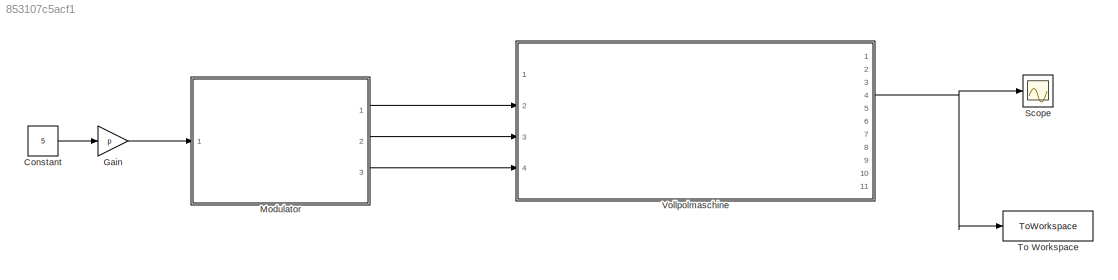
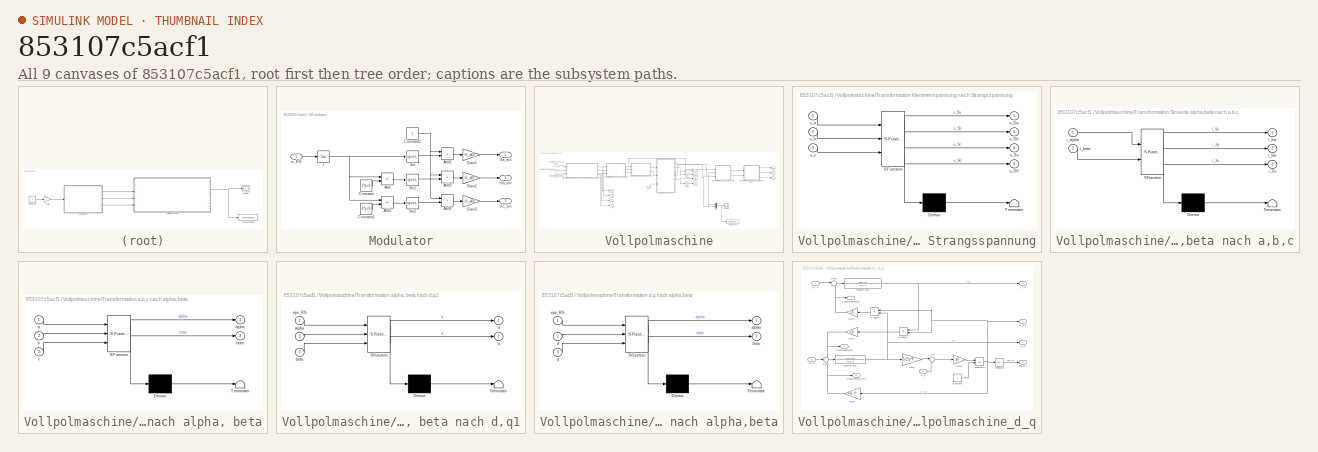
[diagram: thumbnail index - all 9 canvases of the model, root first then tree order]
MODEL slx_853107c5acf1
KIND model
CONFIG AbsTol = auto
CONFIG EnableMultiTasking = on
CONFIG FixedStep = 1e-8
CONFIG MaxStep = 1e-4
CONFIG MinStep = 1e-9
CONFIG RelTol = 1e-9
CONFIG SampleTimeConstraint = Unconstrained
CONFIG SolverName = VariableStepAuto
CONFIG StartTime = 0.0
CONFIG StopTime = 5
BLOCK [Constant] Constant
  Value = 5
BLOCK [Gain] Gain
  Gain = p
BLOCK [SubSystem] Modulator
  Ports = [1, 3]
  RequestExecContextInheritance = off
BLOCK [Sum] Modulator/Add
  IconShape = rectangular
  Inputs = +-
  Ports = [2, 1]
BLOCK [Sum] Modulator/Add1
  IconShape = rectangular
  Inputs = +-
  Ports = [2, 1]
BLOCK [Sum] Modulator/Add2
  IconShape = rectangular
  Ports = [2, 1]
BLOCK [Sum] Modulator/Add3
  IconShape = rectangular
  Ports = [2, 1]
BLOCK [Sum] Modulator/Add4
  IconShape = rectangular
  Ports = [2, 1]
BLOCK [Constant] Modulator/Constant
  Value = 2*pi/3
BLOCK [Constant] Modulator/Constant1
  Value = 4*pi/3
BLOCK [Constant] Modulator/Constant2
BLOCK [Gain] Modulator/Gain1
  Gain = U_d/2
BLOCK [Gain] Modulator/Gain2
  Gain = U_d/2
BLOCK [Gain] Modulator/Gain3
  Gain = U_d/2
BLOCK [Trigonometry] Modulator/Sin
  Ports = [1, 1]
BLOCK [Trigonometry] Modulator/Sin1
  Ports = [1, 1]
BLOCK [Trigonometry] Modulator/Sin2
  Ports = [1, 1]
BLOCK [Outport] Modulator/Ua_sin
BLOCK [Outport] Modulator/Ub_sin
  Port = 2
BLOCK [Outport] Modulator/Uc_sin
  Port = 3
BLOCK [Integrator] Modulator/t
  Ports = [1, 1]
BLOCK [Inport] Modulator/w_RS
BLOCK [Scope] Scope
  Floating = off
  NumInputPorts = 1
  Ports = [1]
  ScopeSpecificationString = Simulink.scopes.TimeScopeBlockCfg('CurrentConfiguration', extmgr.ConfigurationSet(extmgr.Configuration('Core','General UI',true),extmgr.Configuration('Core','Source UI',true),extmgr.Configuration('Sources','WiredSimulink',true),extmgr.Configuration('Visuals','Time Domain',true,'SerializedDisplays',{struct('MinYLimReal','-22.03806','MaxYLimReal','30.10528','YLabelReal','','MinYLimMag','0.00000','Ma...<+1422ch>
BLOCK [ToWorkspace] To Workspace
  FixptAsFi = on
  MaxDataPoints = inf
  Ports = [1]
  SampleTime = -1
  SaveFormat = Timeseries
  VariableName = mech_winkelg
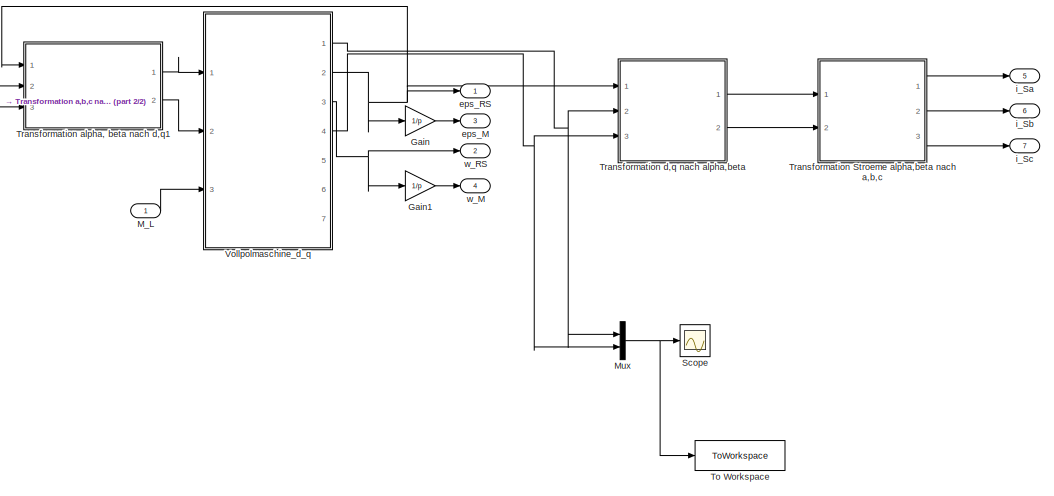
[diagram: Vollpolmaschine - part 1/2, right side, full height]
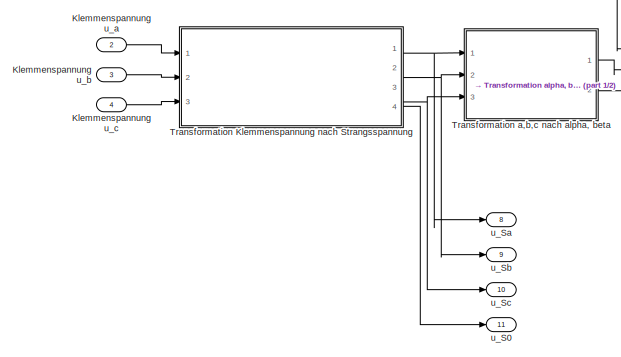
[diagram: Vollpolmaschine - part 2/2, middle left region]
BLOCK [SubSystem] Vollpolmaschine
  Ports = [4, 11]
  RequestExecContextInheritance = off
BLOCK [Gain] Vollpolmaschine/Gain
  Gain = 1/p
BLOCK [Gain] Vollpolmaschine/Gain1
  Gain = 1/p
BLOCK [Inport] Vollpolmaschine/Klemmenspannung u_a
  Port = 2
BLOCK [Inport] Vollpolmaschine/Klemmenspannung u_b
  Port = 3
BLOCK [Inport] Vollpolmaschine/Klemmenspannung u_c
  Port = 4
BLOCK [Inport] Vollpolmaschine/M_L
BLOCK [Mux] Vollpolmaschine/Mux
  DisplayOption = bar
  Inputs = 2
  Ports = [2, 1]
BLOCK [Scope] Vollpolmaschine/Scope
  Floating = off
  NumInputPorts = 1
  Ports = [1]
  ScopeSpecificationString = Simulink.scopes.TimeScopeBlockCfg('CurrentConfiguration', extmgr.ConfigurationSet(extmgr.Configuration('Core','General UI',true),extmgr.Configuration('Core','Source UI',true),extmgr.Configuration('Sources','WiredSimulink',true,'DataLoggingVariableName','ScopeData1'),extmgr.Configuration('Visuals','Time Domain',true,'SerializedDisplays',{struct('MinYLimReal','-28.21785','MaxYLimReal','31.65985','YL...<+1497ch>
BLOCK [ToWorkspace] Vollpolmaschine/To Workspace
  FixptAsFi = on
  MaxDataPoints = inf
  Ports = [1]
  SampleTime = -1
  SaveFormat = Timeseries
  VariableName = dq_strome
BLOCK [SubSystem] Vollpolmaschine/Transformation Klemmenspannung nach Strangsspannung
  ErrorFcn = Stateflow.Translate.translate
  PermitHierarchicalResolution = ExplicitOnly
  Ports = [3, 4]
  RequestExecContextInheritance = off
  SFBlockType = MATLAB Function
  TreatAsAtomicUnit = on
BLOCK [Demux] Vollpolmaschine/Transformation Klemmenspannung nach Strangsspannung/ Demux 
  Outputs = 1
  Ports = [1, 1]
BLOCK [S-Function] Vollpolmaschine/Transformation Klemmenspannung nach Strangsspannung/ SFunction 
  EnableBusSupport = on
  FunctionName = sf_sfun
  PortCounts = [3 5]
  Ports = [3, 5]
  SFcnIsStateOwnerBlock = off
  SFunctionDeploymentMode = off
  Tag = Stateflow S-Function 9
BLOCK [Terminator] Vollpolmaschine/Transformation Klemmenspannung nach Strangsspannung/ Terminator 
BLOCK [Outport] Vollpolmaschine/Transformation Klemmenspannung nach Strangsspannung/u_S0
  Port = 4
  VectorParamsAs1DForOutWhenUnconnected = off
BLOCK [Outport] Vollpolmaschine/Transformation Klemmenspannung nach Strangsspannung/u_Sa
  VectorParamsAs1DForOutWhenUnconnected = off
BLOCK [Outport] Vollpolmaschine/Transformation Klemmenspannung nach Strangsspannung/u_Sb
  Port = 2
  VectorParamsAs1DForOutWhenUnconnected = off
BLOCK [Outport] Vollpolmaschine/Transformation Klemmenspannung nach Strangsspannung/u_Sc
  Port = 3
  VectorParamsAs1DForOutWhenUnconnected = off
BLOCK [Inport] Vollpolmaschine/Transformation Klemmenspannung nach Strangsspannung/u_a
BLOCK [Inport] Vollpolmaschine/Transformation Klemmenspannung nach Strangsspannung/u_b
  Port = 2
BLOCK [Inport] Vollpolmaschine/Transformation Klemmenspannung nach Strangsspannung/u_c
  Port = 3
BLOCK [SubSystem] Vollpolmaschine/Transformation Stroeme alpha,beta nach a,b,c
  ErrorFcn = Stateflow.Translate.translate
  PermitHierarchicalResolution = ExplicitOnly
  Ports = [2, 3]
  RequestExecContextInheritance = off
  SFBlockType = MATLAB Function
  TreatAsAtomicUnit = on
BLOCK [Demux] Vollpolmaschine/Transformation Stroeme alpha,beta nach a,b,c/ Demux 
  Outputs = 1
  Ports = [1, 1]
BLOCK [S-Function] Vollpolmaschine/Transformation Stroeme alpha,beta nach a,b,c/ SFunction 
  EnableBusSupport = on
  FunctionName = sf_sfun
  PortCounts = [2 4]
  Ports = [2, 4]
  SFcnIsStateOwnerBlock = off
  SFunctionDeploymentMode = off
  Tag = Stateflow S-Function 10
BLOCK [Terminator] Vollpolmaschine/Transformation Stroeme alpha,beta nach a,b,c/ Terminator 
BLOCK [Outport] Vollpolmaschine/Transformation Stroeme alpha,beta nach a,b,c/i_Sa
  VectorParamsAs1DForOutWhenUnconnected = off
BLOCK [Outport] Vollpolmaschine/Transformation Stroeme alpha,beta nach a,b,c/i_Sb
  Port = 2
  VectorParamsAs1DForOutWhenUnconnected = off
BLOCK [Outport] Vollpolmaschine/Transformation Stroeme alpha,beta nach a,b,c/i_Sc
  Port = 3
  VectorParamsAs1DForOutWhenUnconnected = off
BLOCK [Inport] Vollpolmaschine/Transformation Stroeme alpha,beta nach a,b,c/i_alpha
BLOCK [Inport] Vollpolmaschine/Transformation Stroeme alpha,beta nach a,b,c/i_beta
  Port = 2
BLOCK [SubSystem] Vollpolmaschine/Transformation a,b,c nach alpha, beta
  ErrorFcn = Stateflow.Translate.translate
  PermitHierarchicalResolution = ExplicitOnly
  Ports = [3, 2]
  RequestExecContextInheritance = off
  SFBlockType = MATLAB Function
  TreatAsAtomicUnit = on
BLOCK [Demux] Vollpolmaschine/Transformation a,b,c nach alpha, beta/ Demux 
  Outputs = 1
  Ports = [1, 1]
BLOCK [S-Function] Vollpolmaschine/Transformation a,b,c nach alpha, beta/ SFunction 
  EnableBusSupport = on
  FunctionName = sf_sfun
  PortCounts = [3 3]
  Ports = [3, 3]
  SFcnIsStateOwnerBlock = off
  SFunctionDeploymentMode = off
  Tag = Stateflow S-Function 11
BLOCK [Terminator] Vollpolmaschine/Transformation a,b,c nach alpha, beta/ Terminator 
BLOCK [Inport] Vollpolmaschine/Transformation a,b,c nach alpha, beta/a
BLOCK [Outport] Vollpolmaschine/Transformation a,b,c nach alpha, beta/alpha
  VectorParamsAs1DForOutWhenUnconnected = off
BLOCK [Inport] Vollpolmaschine/Transformation a,b,c nach alpha, beta/b
  Port = 2
BLOCK [Outport] Vollpolmaschine/Transformation a,b,c nach alpha, beta/beta
  Port = 2
  VectorParamsAs1DForOutWhenUnconnected = off
BLOCK [Inport] Vollpolmaschine/Transformation a,b,c nach alpha, beta/c
  Port = 3
BLOCK [SubSystem] Vollpolmaschine/Transformation alpha, beta nach d,q1
  ErrorFcn = Stateflow.Translate.translate
  PermitHierarchicalResolution = ExplicitOnly
  Ports = [3, 2]
  RequestExecContextInheritance = off
  SFBlockType = MATLAB Function
  TreatAsAtomicUnit = on
BLOCK [Demux] Vollpolmaschine/Transformation alpha, beta nach d,q1/ Demux 
  Outputs = 1
  Ports = [1, 1]
BLOCK [S-Function] Vollpolmaschine/Transformation alpha, beta nach d,q1/ SFunction 
  EnableBusSupport = on
  FunctionName = sf_sfun
  PortCounts = [3 3]
  Ports = [3, 3]
  SFcnIsStateOwnerBlock = off
  SFunctionDeploymentMode = off
  Tag = Stateflow S-Function 12
BLOCK [Terminator] Vollpolmaschine/Transformation alpha, beta nach d,q1/ Terminator 
BLOCK [Inport] Vollpolmaschine/Transformation alpha, beta nach d,q1/alpha
  Port = 2
BLOCK [Inport] Vollpolmaschine/Transformation alpha, beta nach d,q1/beta
  Port = 3
BLOCK [Outport] Vollpolmaschine/Transformation alpha, beta nach d,q1/d
  VectorParamsAs1DForOutWhenUnconnected = off
BLOCK [Inport] Vollpolmaschine/Transformation alpha, beta nach d,q1/eps_RS
BLOCK [Outport] Vollpolmaschine/Transformation alpha, beta nach d,q1/q
  Port = 2
  VectorParamsAs1DForOutWhenUnconnected = off
BLOCK [SubSystem] Vollpolmaschine/Transformation d,q nach alpha,beta
  ErrorFcn = Stateflow.Translate.translate
  PermitHierarchicalResolution = ExplicitOnly
  Ports = [3, 2]
  RequestExecContextInheritance = off
  SFBlockType = MATLAB Function
  TreatAsAtomicUnit = on
BLOCK [Demux] Vollpolmaschine/Transformation d,q nach alpha,beta/ Demux 
  Outputs = 1
  Ports = [1, 1]
BLOCK [S-Function] Vollpolmaschine/Transformation d,q nach alpha,beta/ SFunction 
  EnableBusSupport = on
  FunctionName = sf_sfun
  PortCounts = [3 3]
  Ports = [3, 3]
  SFcnIsStateOwnerBlock = off
  SFunctionDeploymentMode = off
  Tag = Stateflow S-Function 13
BLOCK [Terminator] Vollpolmaschine/Transformation d,q nach alpha,beta/ Terminator 
BLOCK [Outport] Vollpolmaschine/Transformation d,q nach alpha,beta/alpha
  VectorParamsAs1DForOutWhenUnconnected = off
BLOCK [Outport] Vollpolmaschine/Transformation d,q nach alpha,beta/beta
  Port = 2
  VectorParamsAs1DForOutWhenUnconnected = off
BLOCK [Inport] Vollpolmaschine/Transformation d,q nach alpha,beta/d
  Port = 2
BLOCK [Inport] Vollpolmaschine/Transformation d,q nach alpha,beta/eps_RS
BLOCK [Inport] Vollpolmaschine/Transformation d,q nach alpha,beta/q
  Port = 3
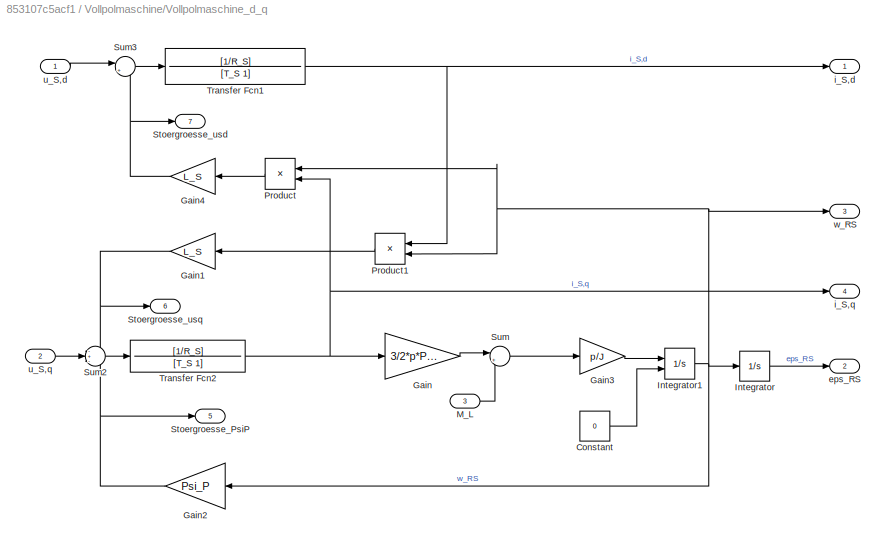
BLOCK [SubSystem] Vollpolmaschine/Vollpolmaschine_d_q
  Ports = [3, 7]
  RequestExecContextInheritance = off
BLOCK [Constant] Vollpolmaschine/Vollpolmaschine_d_q/Constant
  Value = 0
BLOCK [Gain] Vollpolmaschine/Vollpolmaschine_d_q/Gain
  Gain = 3/2*p*Psi_P
BLOCK [Gain] Vollpolmaschine/Vollpolmaschine_d_q/Gain1
  Gain = L_S
BLOCK [Gain] Vollpolmaschine/Vollpolmaschine_d_q/Gain2
  Gain = Psi_P
BLOCK [Gain] Vollpolmaschine/Vollpolmaschine_d_q/Gain3
  Gain = p/J
BLOCK [Gain] Vollpolmaschine/Vollpolmaschine_d_q/Gain4
  Gain = L_S
BLOCK [Integrator] Vollpolmaschine/Vollpolmaschine_d_q/Integrator
  Ports = [1, 1]
BLOCK [Integrator] Vollpolmaschine/Vollpolmaschine_d_q/Integrator1
  InitialConditionSource = external
  Ports = [2, 1]
BLOCK [Inport] Vollpolmaschine/Vollpolmaschine_d_q/M_L
  Port = 3
BLOCK [Product] Vollpolmaschine/Vollpolmaschine_d_q/Product
  Ports = [2, 1]
BLOCK [Product] Vollpolmaschine/Vollpolmaschine_d_q/Product1
  Ports = [2, 1]
BLOCK [Outport] Vollpolmaschine/Vollpolmaschine_d_q/Stoergroesse_PsiP
  Port = 5
  VectorParamsAs1DForOutWhenUnconnected = off
BLOCK [Outport] Vollpolmaschine/Vollpolmaschine_d_q/Stoergroesse_usd
  Port = 7
  VectorParamsAs1DForOutWhenUnconnected = off
BLOCK [Outport] Vollpolmaschine/Vollpolmaschine_d_q/Stoergroesse_usq
  Port = 6
  VectorParamsAs1DForOutWhenUnconnected = off
BLOCK [Sum] Vollpolmaschine/Vollpolmaschine_d_q/Sum
  Inputs = |+-
  Ports = [2, 1]
BLOCK [Sum] Vollpolmaschine/Vollpolmaschine_d_q/Sum2
  Inputs = -+-
  Ports = [3, 1]
BLOCK [Sum] Vollpolmaschine/Vollpolmaschine_d_q/Sum3
  Inputs = |++
  Ports = [2, 1]
BLOCK [TransferFcn] Vollpolmaschine/Vollpolmaschine_d_q/Transfer Fcn1
  Denominator = [T_S 1]
  Numerator = [1/R_S]
BLOCK [TransferFcn] Vollpolmaschine/Vollpolmaschine_d_q/Transfer Fcn2
  Denominator = [T_S 1]
  Numerator = [1/R_S]
BLOCK [Outport] Vollpolmaschine/Vollpolmaschine_d_q/eps_RS
  Port = 2
  VectorParamsAs1DForOutWhenUnconnected = off
BLOCK [Outport] Vollpolmaschine/Vollpolmaschine_d_q/i_S,d
  VectorParamsAs1DForOutWhenUnconnected = off
BLOCK [Outport] Vollpolmaschine/Vollpolmaschine_d_q/i_S,q
  Port = 4
  VectorParamsAs1DForOutWhenUnconnected = off
BLOCK [Inport] Vollpolmaschine/Vollpolmaschine_d_q/u_S,d
BLOCK [Inport] Vollpolmaschine/Vollpolmaschine_d_q/u_S,q
  Port = 2
BLOCK [Outport] Vollpolmaschine/Vollpolmaschine_d_q/w_RS
  Port = 3
  VectorParamsAs1DForOutWhenUnconnected = off
BLOCK [Outport] Vollpolmaschine/eps_M
  Port = 3
  VectorParamsAs1DForOutWhenUnconnected = off
BLOCK [Outport] Vollpolmaschine/eps_RS
  VectorParamsAs1DForOutWhenUnconnected = off
BLOCK [Outport] Vollpolmaschine/i_Sa
  Port = 5
  VectorParamsAs1DForOutWhenUnconnected = off
BLOCK [Outport] Vollpolmaschine/i_Sb
  Port = 6
  VectorParamsAs1DForOutWhenUnconnected = off
BLOCK [Outport] Vollpolmaschine/i_Sc
  Port = 7
  VectorParamsAs1DForOutWhenUnconnected = off
BLOCK [Outport] Vollpolmaschine/u_S0
  Port = 11
  VectorParamsAs1DForOutWhenUnconnected = off
BLOCK [Outport] Vollpolmaschine/u_Sa
  Port = 8
  VectorParamsAs1DForOutWhenUnconnected = off
BLOCK [Outport] Vollpolmaschine/u_Sb
  Port = 9
  VectorParamsAs1DForOutWhenUnconnected = off
BLOCK [Outport] Vollpolmaschine/u_Sc
  Port = 10
  VectorParamsAs1DForOutWhenUnconnected = off
BLOCK [Outport] Vollpolmaschine/w_M
  Port = 4
  VectorParamsAs1DForOutWhenUnconnected = off
BLOCK [Outport] Vollpolmaschine/w_RS
  Port = 2
  VectorParamsAs1DForOutWhenUnconnected = off
LINE Constant:1 -> Gain:1
LINE Gain:1 -> Modulator:1
LINE Modulator/Add1:1 -> Modulator/Sin2:1
LINE Modulator/Add2:1 -> Modulator/Gain1:1
LINE Modulator/Add3:1 -> Modulator/Gain2:1
LINE Modulator/Add4:1 -> Modulator/Gain3:1
LINE Modulator/Add:1 -> Modulator/Sin1:1
LINE Modulator/Constant1:1 -> Modulator/Add1:2
NET Modulator/Constant2:1 -> Modulator/Add2:1, Modulator/Add3:1, Modulator/Add4:1
LINE Modulator/Constant:1 -> Modulator/Add:2
LINE Modulator/Gain1:1 -> Modulator/Ua_sin:1
LINE Modulator/Gain2:1 -> Modulator/Ub_sin:1
LINE Modulator/Gain3:1 -> Modulator/Uc_sin:1
LINE Modulator/Sin1:1 -> Modulator/Add3:2
LINE Modulator/Sin2:1 -> Modulator/Add4:2
LINE Modulator/Sin:1 -> Modulator/Add2:2
NET Modulator/t:1 -> Modulator/Add1:1, Modulator/Add:1, Modulator/Sin:1
LINE Modulator/w_RS:1 -> Modulator/t:1
LINE Modulator:1 -> Vollpolmaschine:2
LINE Modulator:2 -> Vollpolmaschine:3
LINE Modulator:3 -> Vollpolmaschine:4
LINE Vollpolmaschine/Gain1:1 -> Vollpolmaschine/w_M:1
LINE Vollpolmaschine/Gain:1 -> Vollpolmaschine/eps_M:1
LINE Vollpolmaschine/Klemmenspannung u_a:1 -> Vollpolmaschine/Transformation Klemmenspannung nach Strangsspannung:1
LINE Vollpolmaschine/Klemmenspannung u_b:1 -> Vollpolmaschine/Transformation Klemmenspannung nach Strangsspannung:2
LINE Vollpolmaschine/Klemmenspannung u_c:1 -> Vollpolmaschine/Transformation Klemmenspannung nach Strangsspannung:3
LINE Vollpolmaschine/M_L:1 -> Vollpolmaschine/Vollpolmaschine_d_q:3
NET Vollpolmaschine/Mux:1 -> Vollpolmaschine/Scope:1, Vollpolmaschine/To Workspace:1
NET Vollpolmaschine/Transformation Klemmenspannung nach Strangsspannung:1 -> Vollpolmaschine/Transformation a,b,c nach alpha, beta:1, Vollpolmaschine/u_Sa:1
NET Vollpolmaschine/Transformation Klemmenspannung nach Strangsspannung:2 -> Vollpolmaschine/Transformation a,b,c nach alpha, beta:2, Vollpolmaschine/u_Sb:1
NET Vollpolmaschine/Transformation Klemmenspannung nach Strangsspannung:3 -> Vollpolmaschine/Transformation a,b,c nach alpha, beta:3, Vollpolmaschine/u_Sc:1
LINE Vollpolmaschine/Transformation Klemmenspannung nach Strangsspannung:4 -> Vollpolmaschine/u_S0:1
LINE Vollpolmaschine/Transformation Stroeme alpha,beta nach a,b,c:1 -> Vollpolmaschine/i_Sa:1
LINE Vollpolmaschine/Transformation Stroeme alpha,beta nach a,b,c:2 -> Vollpolmaschine/i_Sb:1
LINE Vollpolmaschine/Transformation Stroeme alpha,beta nach a,b,c:3 -> Vollpolmaschine/i_Sc:1
LINE Vollpolmaschine/Transformation a,b,c nach alpha, beta:1 -> Vollpolmaschine/Transformation alpha, beta nach d,q1:2
LINE Vollpolmaschine/Transformation a,b,c nach alpha, beta:2 -> Vollpolmaschine/Transformation alpha, beta nach d,q1:3
LINE Vollpolmaschine/Transformation alpha, beta nach d,q1:1 -> Vollpolmaschine/Vollpolmaschine_d_q:1
LINE Vollpolmaschine/Transformation alpha, beta nach d,q1:2 -> Vollpolmaschine/Vollpolmaschine_d_q:2
LINE Vollpolmaschine/Transformation d,q nach alpha,beta:1 -> Vollpolmaschine/Transformation Stroeme alpha,beta nach a,b,c:1
LINE Vollpolmaschine/Transformation d,q nach alpha,beta:2 -> Vollpolmaschine/Transformation Stroeme alpha,beta nach a,b,c:2
LINE Vollpolmaschine/Vollpolmaschine_d_q/Constant:1 -> Vollpolmaschine/Vollpolmaschine_d_q/Integrator1:2
NET Vollpolmaschine/Vollpolmaschine_d_q/Gain1:1 -> Vollpolmaschine/Vollpolmaschine_d_q/Stoergroesse_usq:1, Vollpolmaschine/Vollpolmaschine_d_q/Sum2:1
NET Vollpolmaschine/Vollpolmaschine_d_q/Gain2:1 -> Vollpolmaschine/Vollpolmaschine_d_q/Stoergroesse_PsiP:1, Vollpolmaschine/Vollpolmaschine_d_q/Sum2:3
LINE Vollpolmaschine/Vollpolmaschine_d_q/Gain3:1 -> Vollpolmaschine/Vollpolmaschine_d_q/Integrator1:1
NET Vollpolmaschine/Vollpolmaschine_d_q/Gain4:1 -> Vollpolmaschine/Vollpolmaschine_d_q/Stoergroesse_usd:1, Vollpolmaschine/Vollpolmaschine_d_q/Sum3:2
LINE Vollpolmaschine/Vollpolmaschine_d_q/Gain:1 -> Vollpolmaschine/Vollpolmaschine_d_q/Sum:1
NET Vollpolmaschine/Vollpolmaschine_d_q/Integrator1:1 -> Vollpolmaschine/Vollpolmaschine_d_q/Gain2:1, Vollpolmaschine/Vollpolmaschine_d_q/Integrator:1, Vollpolmaschine/Vollpolmaschine_d_q/Product1:2, Vollpolmaschine/Vollpolmaschine_d_q/Product:1, Vollpolmaschine/Vollpolmaschine_d_q/w_RS:1
LINE Vollpolmaschine/Vollpolmaschine_d_q/Integrator:1 -> Vollpolmaschine/Vollpolmaschine_d_q/eps_RS:1
LINE Vollpolmaschine/Vollpolmaschine_d_q/M_L:1 -> Vollpolmaschine/Vollpolmaschine_d_q/Sum:2
LINE Vollpolmaschine/Vollpolmaschine_d_q/Product1:1 -> Vollpolmaschine/Vollpolmaschine_d_q/Gain1:1
LINE Vollpolmaschine/Vollpolmaschine_d_q/Product:1 -> Vollpolmaschine/Vollpolmaschine_d_q/Gain4:1
LINE Vollpolmaschine/Vollpolmaschine_d_q/Sum2:1 -> Vollpolmaschine/Vollpolmaschine_d_q/Transfer Fcn2:1
LINE Vollpolmaschine/Vollpolmaschine_d_q/Sum3:1 -> Vollpolmaschine/Vollpolmaschine_d_q/Transfer Fcn1:1
LINE Vollpolmaschine/Vollpolmaschine_d_q/Sum:1 -> Vollpolmaschine/Vollpolmaschine_d_q/Gain3:1
NET Vollpolmaschine/Vollpolmaschine_d_q/Transfer Fcn1:1 -> Vollpolmaschine/Vollpolmaschine_d_q/Product1:1, Vollpolmaschine/Vollpolmaschine_d_q/i_S,d:1
NET Vollpolmaschine/Vollpolmaschine_d_q/Transfer Fcn2:1 -> Vollpolmaschine/Vollpolmaschine_d_q/Gain:1, Vollpolmaschine/Vollpolmaschine_d_q/Product:2, Vollpolmaschine/Vollpolmaschine_d_q/i_S,q:1
LINE Vollpolmaschine/Vollpolmaschine_d_q/u_S,d:1 -> Vollpolmaschine/Vollpolmaschine_d_q/Sum3:1
LINE Vollpolmaschine/Vollpolmaschine_d_q/u_S,q:1 -> Vollpolmaschine/Vollpolmaschine_d_q/Sum2:2
NET Vollpolmaschine/Vollpolmaschine_d_q:1 -> Vollpolmaschine/Mux:1, Vollpolmaschine/Transformation d,q nach alpha,beta:2
NET Vollpolmaschine/Vollpolmaschine_d_q:2 -> Vollpolmaschine/Gain:1, Vollpolmaschine/Transformation alpha, beta nach d,q1:1, Vollpolmaschine/Transformation d,q nach alpha,beta:1, Vollpolmaschine/eps_RS:1
NET Vollpolmaschine/Vollpolmaschine_d_q:3 -> Vollpolmaschine/Gain1:1, Vollpolmaschine/w_RS:1
NET Vollpolmaschine/Vollpolmaschine_d_q:4 -> Vollpolmaschine/Mux:2, Vollpolmaschine/Transformation d,q nach alpha,beta:3
NET Vollpolmaschine:4 -> Scope:1, To Workspace:1
note: NET lines group one-source signal fan-out (src -> all destinations, sorted); 1:1 wires keep LINE
CHART Vollpolmaschine/Transformation Klemmenspannung nach Strangsspannung states=1 transitions=1
  STATE_LABEL 'eML_blk_kernel()'
  STATE_LABEL 'SCRIPT:\nfunction [u_Sa,u_Sb,u_Sc,u_S0] = fcn(u_a,u_b,u_c)\n%Konvertiert Klemmenspannungen in Strangspannungen\nu_S0=u_a/3+u_b/3+u_c/3;\nu_Sa=u_a-u_S0;\nu_Sb=u_b-u_S0;\nu_Sc=u_c-u_S0;\nend\n\n'
CHART Vollpolmaschine/Transformation Stroeme alpha,beta
nach a,b,c states=1 transitions=1
  STATE_LABEL 'eML_blk_kernel()'
  STATE_LABEL 'SCRIPT:\nfunction [i_Sa,i_Sb,i_Sc] = fcn(i_alpha,i_beta)\ni_Sa=i_alpha;\ni_Sb=-1/2*i_alpha+sqrt(3)/2*i_beta;\ni_Sc=-i_Sa-i_Sb;'
CHART Vollpolmaschine/Transformation a,b,c nach alpha, beta states=1 transitions=1
  STATE_LABEL 'eML_blk_kernel()'
  STATE_LABEL 'SCRIPT:\n function [alpha,beta] = fcn(a,b,c)\nalpha=2/3*(a+cos(2*pi/2)*b+cos(4*pi/3)*c);\nbeta=2/3*(sin(2*pi/3)*b+sin(4*pi/3)*c);\n\n'
CHART Vollpolmaschine/Transformation alpha, beta nach d,q1 states=1 transitions=1
  STATE_LABEL 'eML_blk_kernel()'
  STATE_LABEL 'SCRIPT:\nfunction [d,q] = fcn(eps_RS,alpha,beta)\nd=cos(eps_RS)*alpha+sin(eps_RS)*beta;\nq=-sin(eps_RS)*alpha+cos(eps_RS)*beta;\n'
CHART Vollpolmaschine/Transformation d,q nach alpha,beta states=1 transitions=1
  STATE_LABEL 'eML_blk_kernel()'
  STATE_LABEL 'SCRIPT:\nfunction [alpha,beta] = fcn(eps_RS,d,q)\nalpha=cos(eps_RS)*d-sin(eps_RS)*q;\nbeta=sin(eps_RS)*d+cos(eps_RS)*q;'
CHART  states=0 transitions=0
CHART  states=0 transitions=0
CHART  states=0 transitions=0
CHART  states=0 transitions=0
CHART  states=0 transitions=0
